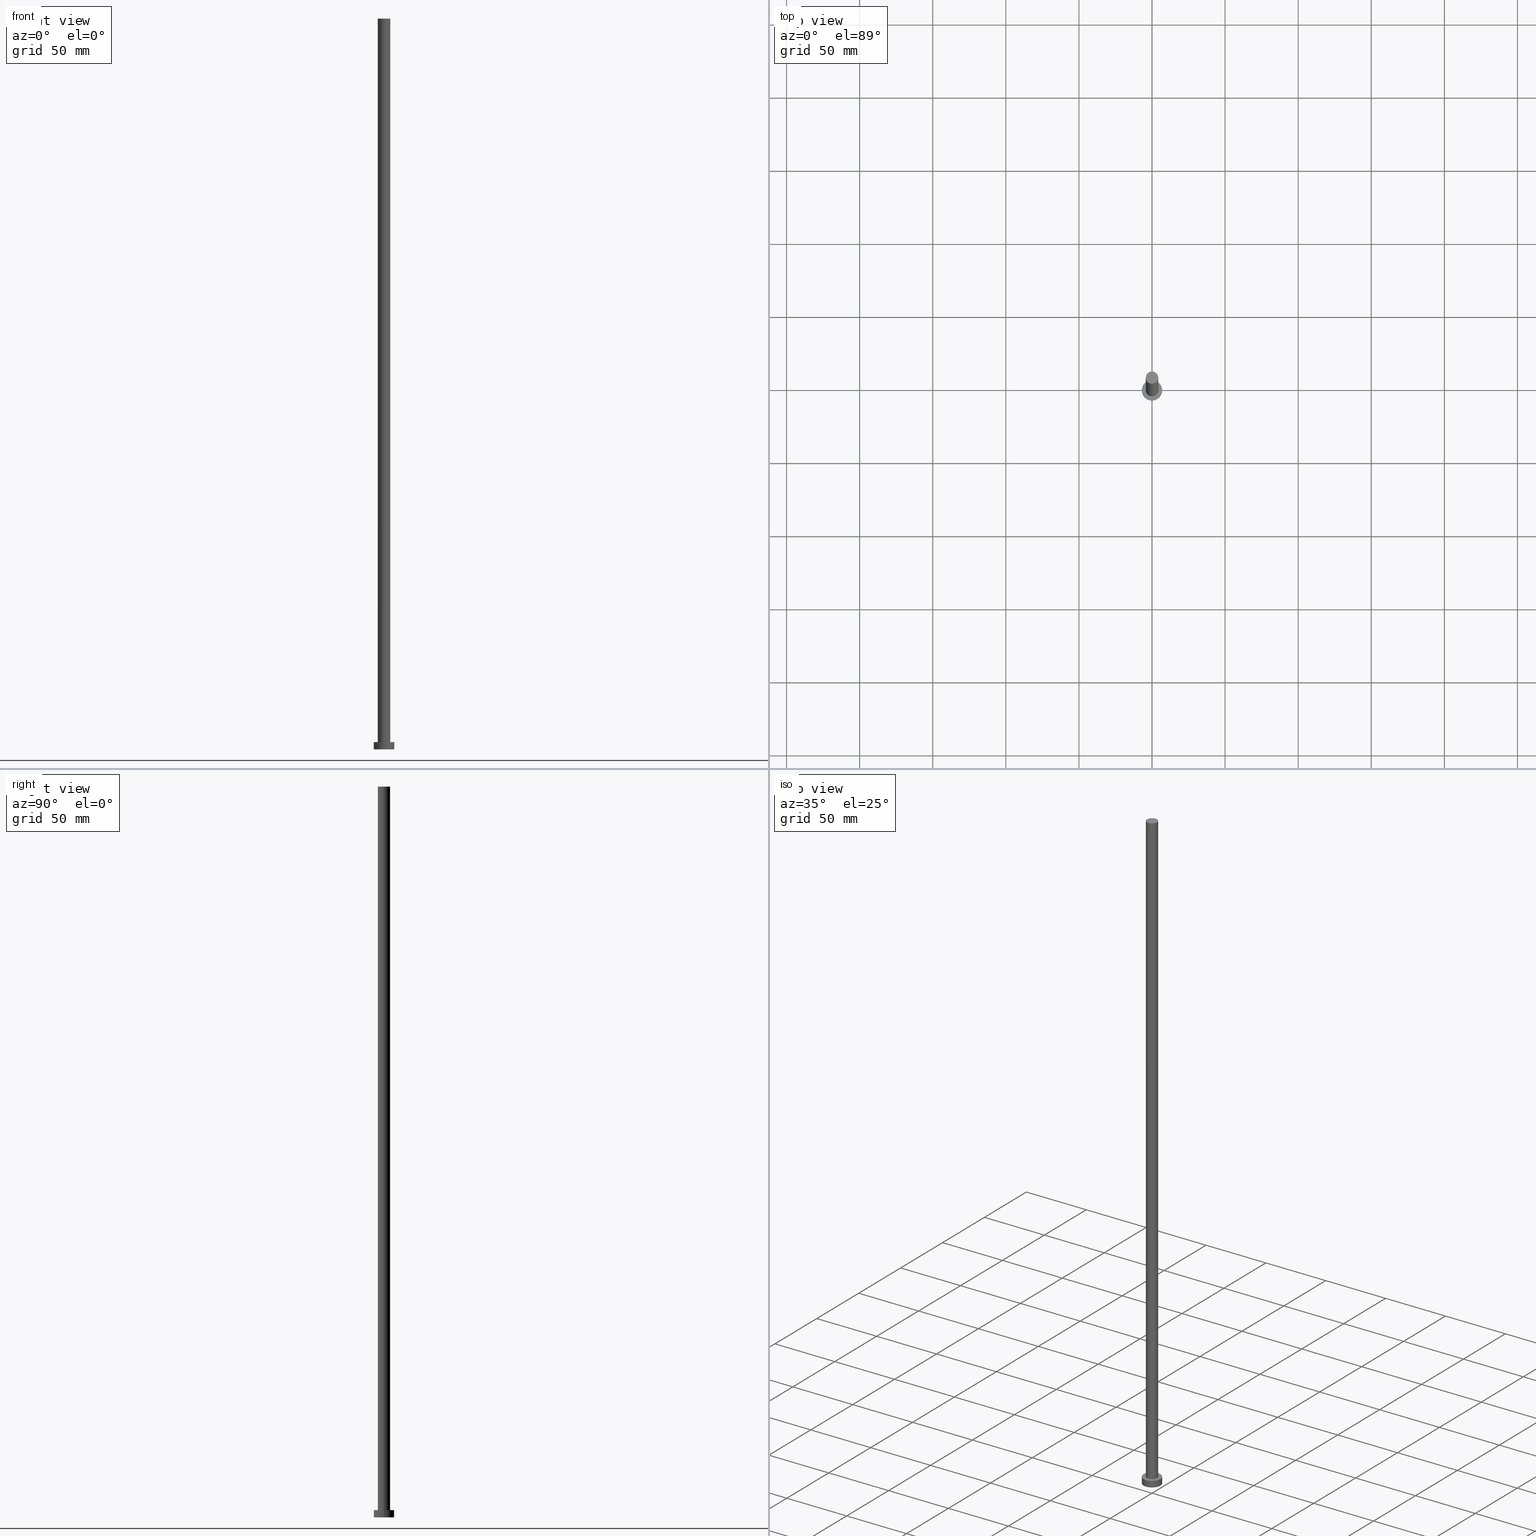
[diagram: canonical four-view strip — front | top / right | iso, engineering-drawing reading convention]
A machine part, canonical four-view strip (front | top / right | iso — engineering-drawing reading convention). The complete STEP part file that produces these views, byte-faithful:
ISO-10303-21;
HEADER;
FILE_DESCRIPTION (( 'STEP AP203' ),
    '1' );
FILE_NAME ('cb31.STEP',
    '2023-02-12T11:37:19',
    ( '' ),
    ( '' ),
    'SwSTEP 2.0',
    'SolidWorks 2019',
    '' );
FILE_SCHEMA (( 'CONFIG_CONTROL_DESIGN' ));
ENDSEC;

DATA;
#1 = APPROVAL_ROLE ( '' ) ;
#2 = CC_DESIGN_APPROVAL ( #199, ( #175 ) ) ;
#3 = COORDINATED_UNIVERSAL_TIME_OFFSET ( 1, 0, .AHEAD. ) ;
#4 = PERSON_AND_ORGANIZATION ( #35, #15 ) ;
#5 = ADVANCED_FACE ( 'NONE', ( #110 ), #253, .T. ) ;
#6 = PRODUCT ( 'cb31', 'cb31', '', ( #100 ) ) ;
#7 = DIRECTION ( 'NONE',  ( 0.000000000000000000, 0.000000000000000000, 1.000000000000000000 ) ) ;
#8 = LINE ( 'NONE', #107, #94 ) ;
#9 = APPROVAL_DATE_TIME ( #69, #188 ) ;
#10 = DIRECTION ( 'NONE',  ( -1.000000000000000000, 0.000000000000000000, 0.000000000000000000 ) ) ;
#11 = VECTOR ( 'NONE', #164, 1000.000000000000000 ) ;
#12 = COORDINATED_UNIVERSAL_TIME_OFFSET ( 1, 0, .AHEAD. ) ;
#13 = CARTESIAN_POINT ( 'NONE',  ( 0.000000000000000000, 0.000000000000000000, 500.0000000000000000 ) ) ;
#14 = ADVANCED_FACE ( 'NONE', ( #86 ), #128, .F. ) ;
#15 = ORGANIZATION ( 'NEUR�EN�', 'NEUR�EN�', '' ) ;
#16 = DIRECTION ( 'NONE',  ( 1.000000000000000000, 0.000000000000000000, -0.000000000000000000 ) ) ;
#17 = DIRECTION ( 'NONE',  ( 1.000000000000000000, 0.000000000000000000, 0.000000000000000000 ) ) ;
#18 = SECURITY_CLASSIFICATION ( '', '', #251 ) ;
#19 = EDGE_LOOP ( 'NONE', ( #21, #135 ) ) ;
#20 = CC_DESIGN_PERSON_AND_ORGANIZATION_ASSIGNMENT ( #185, #92, ( #175 ) ) ;
#21 = ORIENTED_EDGE ( 'NONE', *, *, #221, .T. ) ;
#22 = APPROVAL_STATUS ( 'not_yet_approved' ) ;
#23 = VERTEX_POINT ( 'NONE', #204 ) ;
#24 = DIRECTION ( 'NONE',  ( 1.000000000000000000, 0.000000000000000000, 0.000000000000000000 ) ) ;
#25 = EDGE_CURVE ( 'NONE', #219, #173, #73, .T. ) ;
#26 = ORIENTED_EDGE ( 'NONE', *, *, #98, .T. ) ;
#27 = CALENDAR_DATE ( 2023, 12, 2 ) ;
#28 = DIRECTION ( 'NONE',  ( -0.000000000000000000, -0.000000000000000000, -1.000000000000000000 ) ) ;
#29 =( NAMED_UNIT ( * ) PLANE_ANGLE_UNIT ( ) SI_UNIT ( $, .RADIAN. ) );
#30 = AXIS2_PLACEMENT_3D ( 'NONE', #147, #31, #50 ) ;
#31 = DIRECTION ( 'NONE',  ( 0.000000000000000000, 0.000000000000000000, 1.000000000000000000 ) ) ;
#32 = DIRECTION ( 'NONE',  ( 1.000000000000000000, 0.000000000000000000, -0.000000000000000000 ) ) ;
#33 = CALENDAR_DATE ( 2023, 12, 2 ) ;
#34 = FACE_OUTER_BOUND ( 'NONE', #200, .T. ) ;
#35 = PERSON ( 'NEUR�EN�', 'NEUR�EN�', 'NEUR�EN�', ('NEUR�EN�'), ('NEUR�EN�'), ('NEUR�EN�') ) ;
#36 = LOCAL_TIME ( 12, 37, 19.00000000000000000, #67 ) ;
#37 = PRODUCT_DEFINITION ( 'NEZN�M�', '', #175, #192 ) ;
#38 = SHAPE_DEFINITION_REPRESENTATION ( #182, #168 ) ;
#39 = APPROVAL ( #99, 'NEUR�EN�' ) ;
#40 = AXIS2_PLACEMENT_3D ( 'NONE', #202, #75, #68 ) ;
#41 = EDGE_CURVE ( 'NONE', #219, #222, #250, .T. ) ;
#42 = ORIENTED_EDGE ( 'NONE', *, *, #61, .F. ) ;
#43 = APPLICATION_PROTOCOL_DEFINITION ( 'international standard', 'config_control_design', 1994, #223 ) ;
#44 = DIRECTION ( 'NONE',  ( 1.000000000000000000, 0.000000000000000000, 0.000000000000000000 ) ) ;
#45 = EDGE_LOOP ( 'NONE', ( #141, #153, #26, #244 ) ) ;
#46 = CARTESIAN_POINT ( 'NONE',  ( -4.250000000000000000, 0.000000000000000000, 500.0000000000000000 ) ) ;
#47 = AXIS2_PLACEMENT_3D ( 'NONE', #196, #127, #24 ) ;
#48 = CARTESIAN_POINT ( 'NONE',  ( 0.000000000000000000, 0.000000000000000000, 0.000000000000000000 ) ) ;
#49 = APPROVAL_STATUS ( 'not_yet_approved' ) ;
#50 = DIRECTION ( 'NONE',  ( 1.000000000000000000, 0.000000000000000000, 0.000000000000000000 ) ) ;
#51 = CC_DESIGN_PERSON_AND_ORGANIZATION_ASSIGNMENT ( #72, #203, ( #18 ) ) ;
#52 = CLOSED_SHELL ( 'NONE', ( #211, #5, #93, #170, #14, #81, #125 ) ) ;
#53 = DIRECTION ( 'NONE',  ( 0.000000000000000000, 0.000000000000000000, 1.000000000000000000 ) ) ;
#54 = DIRECTION ( 'NONE',  ( -0.000000000000000000, -0.000000000000000000, -1.000000000000000000 ) ) ;
#55 = EDGE_CURVE ( 'NONE', #222, #23, #190, .T. ) ;
#56 =( GEOMETRIC_REPRESENTATION_CONTEXT ( 3 ) GLOBAL_UNCERTAINTY_ASSIGNED_CONTEXT ( ( #213 ) ) GLOBAL_UNIT_ASSIGNED_CONTEXT ( ( #198, #29, #176 ) ) REPRESENTATION_CONTEXT ( 'NONE', 'WORKASPACE' ) );
#57 = CARTESIAN_POINT ( 'NONE',  ( 7.000000000000000000, 8.572527594031473190E-16, 5.000000000000000000 ) ) ;
#58 = ORIENTED_EDGE ( 'NONE', *, *, #228, .T. ) ;
#59 = PERSON_AND_ORGANIZATION ( #35, #15 ) ;
#60 = ORIENTED_EDGE ( 'NONE', *, *, #228, .F. ) ;
#61 = EDGE_CURVE ( 'NONE', #156, #120, #109, .T. ) ;
#62 = VERTEX_POINT ( 'NONE', #180 ) ;
#63 = PERSON_AND_ORGANIZATION ( #35, #15 ) ;
#64 = ORIENTED_EDGE ( 'NONE', *, *, #55, .T. ) ;
#65 = CARTESIAN_POINT ( 'NONE',  ( -4.250000000000000000, 0.000000000000000000, 500.0000000000000000 ) ) ;
#66 = DATE_TIME_ROLE ( 'creation_date' ) ;
#67 = COORDINATED_UNIVERSAL_TIME_OFFSET ( 1, 0, .AHEAD. ) ;
#68 = DIRECTION ( 'NONE',  ( 1.000000000000000000, 0.000000000000000000, 0.000000000000000000 ) ) ;
#69 = DATE_AND_TIME ( #27, #80 ) ;
#70 = DIRECTION ( 'NONE',  ( -1.000000000000000000, 0.000000000000000000, 0.000000000000000000 ) ) ;
#71 = PLANE ( 'NONE',  #246 ) ;
#72 = PERSON_AND_ORGANIZATION ( #35, #15 ) ;
#73 = CIRCLE ( 'NONE', #209, 7.000000000000000000 ) ;
#74 = EDGE_CURVE ( 'NONE', #173, #23, #8, .T. ) ;
#75 = DIRECTION ( 'NONE',  ( 0.000000000000000000, 0.000000000000000000, 1.000000000000000000 ) ) ;
#76 = APPROVAL_PERSON_ORGANIZATION ( #59, #39, #207 ) ;
#77 = CARTESIAN_POINT ( 'NONE',  ( 0.000000000000000000, 0.000000000000000000, 5.000000000000000000 ) ) ;
#78 = CIRCLE ( 'NONE', #235, 4.250000000000000000 ) ;
#79 = AXIS2_PLACEMENT_3D ( 'NONE', #114, #189, #17 ) ;
#80 = LOCAL_TIME ( 12, 37, 19.00000000000000000, #159 ) ;
#81 = ADVANCED_FACE ( 'NONE', ( #34 ), #149, .T. ) ;
#82 = CARTESIAN_POINT ( 'NONE',  ( 4.250000000000000000, 5.204748896376250699E-16, 500.0000000000000000 ) ) ;
#83 = ORIENTED_EDGE ( 'NONE', *, *, #131, .T. ) ;
#84 = EDGE_CURVE ( 'NONE', #62, #120, #78, .T. ) ;
#85 = EDGE_LOOP ( 'NONE', ( #212, #240, #137, #60 ) ) ;
#86 = FACE_OUTER_BOUND ( 'NONE', #139, .T. ) ;
#87 = AXIS2_PLACEMENT_3D ( 'NONE', #103, #162, #10 ) ;
#88 = LOCAL_TIME ( 12, 37, 19.00000000000000000, #3 ) ;
#89 = CYLINDRICAL_SURFACE ( 'NONE', #205, 7.000000000000000000 ) ;
#90 = DATE_AND_TIME ( #146, #88 ) ;
#91 = CARTESIAN_POINT ( 'NONE',  ( 4.250000000000000000, 5.204748896376250699E-16, 5.000000000000000000 ) ) ;
#92 = PERSON_AND_ORGANIZATION_ROLE ( 'design_supplier' ) ;
#93 = ADVANCED_FACE ( 'NONE', ( #227 ), #89, .T. ) ;
#94 = VECTOR ( 'NONE', #54, 1000.000000000000000 ) ;
#95 = CARTESIAN_POINT ( 'NONE',  ( 0.000000000000000000, 0.000000000000000000, 5.000000000000000000 ) ) ;
#96 = DATE_AND_TIME ( #33, #181 ) ;
#97 = AXIS2_PLACEMENT_3D ( 'NONE', #48, #7, #32 ) ;
#98 = EDGE_CURVE ( 'NONE', #23, #222, #152, .T. ) ;
#99 = APPROVAL_STATUS ( 'not_yet_approved' ) ;
#100 = MECHANICAL_CONTEXT ( 'NONE', #186, 'mechanical' ) ;
#101 = ORIENTED_EDGE ( 'NONE', *, *, #98, .F. ) ;
#102 = DIRECTION ( 'NONE',  ( 0.000000000000000000, 0.000000000000000000, 1.000000000000000000 ) ) ;
#103 = CARTESIAN_POINT ( 'NONE',  ( 0.000000000000000000, 0.000000000000000000, 500.0000000000000000 ) ) ;
#104 = CC_DESIGN_PERSON_AND_ORGANIZATION_ASSIGNMENT ( #4, #118, ( #37 ) ) ;
#105 = DIRECTION ( 'NONE',  ( 1.000000000000000000, 0.000000000000000000, 0.000000000000000000 ) ) ;
#106 = CC_DESIGN_APPROVAL ( #39, ( #18 ) ) ;
#107 = CARTESIAN_POINT ( 'NONE',  ( 7.000000000000000000, 8.572527594031473190E-16, 5.000000000000000000 ) ) ;
#108 = PERSON_AND_ORGANIZATION_ROLE ( 'creator' ) ;
#109 = LINE ( 'NONE', #145, #171 ) ;
#110 = FACE_OUTER_BOUND ( 'NONE', #45, .T. ) ;
#111 = CARTESIAN_POINT ( 'NONE',  ( -7.000000000000000000, 0.000000000000000000, 5.000000000000000000 ) ) ;
#112 = CIRCLE ( 'NONE', #47, 4.250000000000000000 ) ;
#113 = CC_DESIGN_PERSON_AND_ORGANIZATION_ASSIGNMENT ( #130, #108, ( #175 ) ) ;
#114 = CARTESIAN_POINT ( 'NONE',  ( 0.000000000000000000, 0.000000000000000000, 5.000000000000000000 ) ) ;
#115 = DATE_AND_TIME ( #169, #218 ) ;
#116 = AXIS2_PLACEMENT_3D ( 'NONE', #140, #102, #193 ) ;
#117 = EDGE_LOOP ( 'NONE', ( #143, #217 ) ) ;
#118 = PERSON_AND_ORGANIZATION_ROLE ( 'creator' ) ;
#119 = PRODUCT_RELATED_PRODUCT_CATEGORY ( 'detail', '', ( #6 ) ) ;
#120 = VERTEX_POINT ( 'NONE', #91 ) ;
#121 = PERSON_AND_ORGANIZATION ( #35, #15 ) ;
#122 = ORIENTED_EDGE ( 'NONE', *, *, #84, .T. ) ;
#123 = CIRCLE ( 'NONE', #124, 4.250000000000000000 ) ;
#124 = AXIS2_PLACEMENT_3D ( 'NONE', #13, #142, #44 ) ;
#125 = ADVANCED_FACE ( 'NONE', ( #165 ), #71, .T. ) ;
#126 = CARTESIAN_POINT ( 'NONE',  ( -7.000000000000000000, 0.000000000000000000, 5.000000000000000000 ) ) ;
#127 = DIRECTION ( 'NONE',  ( 0.000000000000000000, 0.000000000000000000, 1.000000000000000000 ) ) ;
#128 = PLANE ( 'NONE',  #97 ) ;
#129 = DIRECTION ( 'NONE',  ( 1.000000000000000000, 0.000000000000000000, -0.000000000000000000 ) ) ;
#130 = PERSON_AND_ORGANIZATION ( #35, #15 ) ;
#131 = EDGE_CURVE ( 'NONE', #173, #219, #216, .T. ) ;
#132 = DIRECTION ( 'NONE',  ( -0.000000000000000000, -0.000000000000000000, -1.000000000000000000 ) ) ;
#133 = APPROVAL_PERSON_ORGANIZATION ( #161, #199, #1 ) ;
#134 = DIRECTION ( 'NONE',  ( 1.000000000000000000, 0.000000000000000000, 0.000000000000000000 ) ) ;
#135 = ORIENTED_EDGE ( 'NONE', *, *, #187, .T. ) ;
#136 = DIRECTION ( 'NONE',  ( -1.000000000000000000, 0.000000000000000000, 0.000000000000000000 ) ) ;
#137 = ORIENTED_EDGE ( 'NONE', *, *, #238, .T. ) ;
#138 = CYLINDRICAL_SURFACE ( 'NONE', #243, 4.250000000000000000 ) ;
#139 = EDGE_LOOP ( 'NONE', ( #195, #101 ) ) ;
#140 = CARTESIAN_POINT ( 'NONE',  ( 0.000000000000000000, 0.000000000000000000, 0.000000000000000000 ) ) ;
#141 = ORIENTED_EDGE ( 'NONE', *, *, #131, .F. ) ;
#142 = DIRECTION ( 'NONE',  ( 0.000000000000000000, 0.000000000000000000, 1.000000000000000000 ) ) ;
#143 = ORIENTED_EDGE ( 'NONE', *, *, #84, .F. ) ;
#144 = ORIENTED_EDGE ( 'NONE', *, *, #221, .F. ) ;
#145 = CARTESIAN_POINT ( 'NONE',  ( 4.250000000000000000, 5.204748896376250699E-16, 500.0000000000000000 ) ) ;
#146 = CALENDAR_DATE ( 2023, 12, 2 ) ;
#147 = CARTESIAN_POINT ( 'NONE',  ( 0.000000000000000000, 0.000000000000000000, 0.000000000000000000 ) ) ;
#148 = DIRECTION ( 'NONE',  ( -0.000000000000000000, -0.000000000000000000, -1.000000000000000000 ) ) ;
#149 = CYLINDRICAL_SURFACE ( 'NONE', #87, 4.250000000000000000 ) ;
#150 = VECTOR ( 'NONE', #28, 1000.000000000000000 ) ;
#151 = APPROVAL_DATE_TIME ( #115, #39 ) ;
#152 = CIRCLE ( 'NONE', #30, 7.000000000000000000 ) ;
#153 = ORIENTED_EDGE ( 'NONE', *, *, #74, .T. ) ;
#154 = FACE_BOUND ( 'NONE', #117, .T. ) ;
#155 = CARTESIAN_POINT ( 'NONE',  ( 0.000000000000000000, 0.000000000000000000, 500.0000000000000000 ) ) ;
#156 = VERTEX_POINT ( 'NONE', #82 ) ;
#157 = CC_DESIGN_SECURITY_CLASSIFICATION ( #18, ( #175 ) ) ;
#158 = LINE ( 'NONE', #46, #11 ) ;
#159 = COORDINATED_UNIVERSAL_TIME_OFFSET ( 1, 0, .AHEAD. ) ;
#160 = ORIENTED_EDGE ( 'NONE', *, *, #74, .F. ) ;
#161 = PERSON_AND_ORGANIZATION ( #35, #15 ) ;
#162 = DIRECTION ( 'NONE',  ( -0.000000000000000000, -0.000000000000000000, -1.000000000000000000 ) ) ;
#163 = CARTESIAN_POINT ( 'NONE',  ( 0.000000000000000000, 0.000000000000000000, 5.000000000000000000 ) ) ;
#164 = DIRECTION ( 'NONE',  ( -0.000000000000000000, -0.000000000000000000, -1.000000000000000000 ) ) ;
#165 = FACE_OUTER_BOUND ( 'NONE', #19, .T. ) ;
#166 = CC_DESIGN_DATE_AND_TIME_ASSIGNMENT ( #96, #233, ( #18 ) ) ;
#167 = DIRECTION ( 'NONE',  ( 0.000000000000000000, 0.000000000000000000, 1.000000000000000000 ) ) ;
#168 = ADVANCED_BREP_SHAPE_REPRESENTATION ( 'cb31', ( #234, #116 ), #56 ) ;
#169 = CALENDAR_DATE ( 2023, 12, 2 ) ;
#170 = ADVANCED_FACE ( 'NONE', ( #154, #172 ), #239, .T. ) ;
#171 = VECTOR ( 'NONE', #148, 1000.000000000000000 ) ;
#172 = FACE_OUTER_BOUND ( 'NONE', #174, .T. ) ;
#173 = VERTEX_POINT ( 'NONE', #57 ) ;
#174 = EDGE_LOOP ( 'NONE', ( #245, #83 ) ) ;
#175 = PRODUCT_DEFINITION_FORMATION_WITH_SPECIFIED_SOURCE ( 'LIBOVOLN�', '', #6, .NOT_KNOWN. ) ;
#176 =( NAMED_UNIT ( * ) SI_UNIT ( $, .STERADIAN. ) SOLID_ANGLE_UNIT ( ) );
#177 = APPLICATION_PROTOCOL_DEFINITION ( 'international standard', 'config_control_design', 1994, #186 ) ;
#178 = DIRECTION ( 'NONE',  ( 0.000000000000000000, 0.000000000000000000, 1.000000000000000000 ) ) ;
#179 = CARTESIAN_POINT ( 'NONE',  ( -7.000000000000000000, 0.000000000000000000, 0.000000000000000000 ) ) ;
#180 = CARTESIAN_POINT ( 'NONE',  ( -4.250000000000000000, 0.000000000000000000, 5.000000000000000000 ) ) ;
#181 = LOCAL_TIME ( 12, 37, 19.00000000000000000, #12 ) ;
#182 = PRODUCT_DEFINITION_SHAPE ( 'NONE', 'NONE',  #37 ) ;
#183 = DIRECTION ( 'NONE',  ( 1.000000000000000000, 0.000000000000000000, 0.000000000000000000 ) ) ;
#184 = AXIS2_PLACEMENT_3D ( 'NONE', #95, #197, #229 ) ;
#185 = PERSON_AND_ORGANIZATION ( #35, #15 ) ;
#186 = APPLICATION_CONTEXT ( 'configuration controlled 3d designs of mechanical parts and assemblies' ) ;
#187 = EDGE_CURVE ( 'NONE', #156, #255, #201, .T. ) ;
#188 = APPROVAL ( #49, 'NEUR�EN�' ) ;
#189 = DIRECTION ( 'NONE',  ( 0.000000000000000000, 0.000000000000000000, 1.000000000000000000 ) ) ;
#190 = CIRCLE ( 'NONE', #40, 7.000000000000000000 ) ;
#191 = FACE_OUTER_BOUND ( 'NONE', #85, .T. ) ;
#192 = DESIGN_CONTEXT ( 'detailed design', #223, 'design' ) ;
#193 = DIRECTION ( 'NONE',  ( 1.000000000000000000, 0.000000000000000000, 0.000000000000000000 ) ) ;
#194 = ORIENTED_EDGE ( 'NONE', *, *, #41, .T. ) ;
#195 = ORIENTED_EDGE ( 'NONE', *, *, #55, .F. ) ;
#196 = CARTESIAN_POINT ( 'NONE',  ( 0.000000000000000000, 0.000000000000000000, 5.000000000000000000 ) ) ;
#197 = DIRECTION ( 'NONE',  ( -0.000000000000000000, -0.000000000000000000, -1.000000000000000000 ) ) ;
#198 =( LENGTH_UNIT ( ) NAMED_UNIT ( * ) SI_UNIT ( .MILLI., .METRE. ) );
#199 = APPROVAL ( #22, 'NEUR�EN�' ) ;
#200 = EDGE_LOOP ( 'NONE', ( #42, #144, #58, #122 ) ) ;
#201 = CIRCLE ( 'NONE', #225, 4.250000000000000000 ) ;
#202 = CARTESIAN_POINT ( 'NONE',  ( 0.000000000000000000, 0.000000000000000000, 0.000000000000000000 ) ) ;
#203 = PERSON_AND_ORGANIZATION_ROLE ( 'classification_officer' ) ;
#204 = CARTESIAN_POINT ( 'NONE',  ( 7.000000000000000000, 8.572527594031473190E-16, 0.000000000000000000 ) ) ;
#205 = AXIS2_PLACEMENT_3D ( 'NONE', #163, #249, #70 ) ;
#206 = DATE_AND_TIME ( #232, #36 ) ;
#207 = APPROVAL_ROLE ( '' ) ;
#208 = CC_DESIGN_DATE_AND_TIME_ASSIGNMENT ( #90, #66, ( #37 ) ) ;
#209 = AXIS2_PLACEMENT_3D ( 'NONE', #252, #167, #105 ) ;
#210 = EDGE_LOOP ( 'NONE', ( #160, #224, #194, #64 ) ) ;
#211 = ADVANCED_FACE ( 'NONE', ( #191 ), #138, .T. ) ;
#212 = ORIENTED_EDGE ( 'NONE', *, *, #187, .F. ) ;
#213 = UNCERTAINTY_MEASURE_WITH_UNIT (LENGTH_MEASURE( 1.000000000000000082E-05 ), #198, 'distance_accuracy_value', 'NONE');
#214 = COORDINATED_UNIVERSAL_TIME_OFFSET ( 1, 0, .AHEAD. ) ;
#215 = CARTESIAN_POINT ( 'NONE',  ( 0.000000000000000000, 0.000000000000000000, 500.0000000000000000 ) ) ;
#216 = CIRCLE ( 'NONE', #79, 7.000000000000000000 ) ;
#217 = ORIENTED_EDGE ( 'NONE', *, *, #238, .F. ) ;
#218 = LOCAL_TIME ( 12, 37, 19.00000000000000000, #214 ) ;
#219 = VERTEX_POINT ( 'NONE', #111 ) ;
#220 = PERSON_AND_ORGANIZATION_ROLE ( 'design_owner' ) ;
#221 = EDGE_CURVE ( 'NONE', #255, #156, #123, .T. ) ;
#222 = VERTEX_POINT ( 'NONE', #179 ) ;
#223 = APPLICATION_CONTEXT ( 'configuration controlled 3d designs of mechanical parts and assemblies' ) ;
#224 = ORIENTED_EDGE ( 'NONE', *, *, #25, .F. ) ;
#225 = AXIS2_PLACEMENT_3D ( 'NONE', #155, #241, #134 ) ;
#226 = APPROVAL_ROLE ( '' ) ;
#227 = FACE_OUTER_BOUND ( 'NONE', #210, .T. ) ;
#228 = EDGE_CURVE ( 'NONE', #255, #62, #158, .T. ) ;
#229 = DIRECTION ( 'NONE',  ( -1.000000000000000000, 0.000000000000000000, 0.000000000000000000 ) ) ;
#230 = APPROVAL_DATE_TIME ( #206, #199 ) ;
#231 = CARTESIAN_POINT ( 'NONE',  ( 0.000000000000000000, 0.000000000000000000, 500.0000000000000000 ) ) ;
#232 = CALENDAR_DATE ( 2023, 12, 2 ) ;
#233 = DATE_TIME_ROLE ( 'classification_date' ) ;
#234 = MANIFOLD_SOLID_BREP ( 'P�idat vysunut�m3', #52 ) ;
#235 = AXIS2_PLACEMENT_3D ( 'NONE', #247, #178, #183 ) ;
#236 = DIRECTION ( 'NONE',  ( 0.000000000000000000, 0.000000000000000000, 1.000000000000000000 ) ) ;
#237 = AXIS2_PLACEMENT_3D ( 'NONE', #77, #236, #16 ) ;
#238 = EDGE_CURVE ( 'NONE', #120, #62, #112, .T. ) ;
#239 = PLANE ( 'NONE',  #237 ) ;
#240 = ORIENTED_EDGE ( 'NONE', *, *, #61, .T. ) ;
#241 = DIRECTION ( 'NONE',  ( 0.000000000000000000, 0.000000000000000000, 1.000000000000000000 ) ) ;
#242 = CC_DESIGN_APPROVAL ( #188, ( #37 ) ) ;
#243 = AXIS2_PLACEMENT_3D ( 'NONE', #215, #132, #136 ) ;
#244 = ORIENTED_EDGE ( 'NONE', *, *, #41, .F. ) ;
#245 = ORIENTED_EDGE ( 'NONE', *, *, #25, .T. ) ;
#246 = AXIS2_PLACEMENT_3D ( 'NONE', #231, #53, #129 ) ;
#247 = CARTESIAN_POINT ( 'NONE',  ( 0.000000000000000000, 0.000000000000000000, 5.000000000000000000 ) ) ;
#248 = APPROVAL_PERSON_ORGANIZATION ( #121, #188, #226 ) ;
#249 = DIRECTION ( 'NONE',  ( -0.000000000000000000, -0.000000000000000000, -1.000000000000000000 ) ) ;
#250 = LINE ( 'NONE', #126, #150 ) ;
#251 = SECURITY_CLASSIFICATION_LEVEL ( 'unclassified' ) ;
#252 = CARTESIAN_POINT ( 'NONE',  ( 0.000000000000000000, 0.000000000000000000, 5.000000000000000000 ) ) ;
#253 = CYLINDRICAL_SURFACE ( 'NONE', #184, 7.000000000000000000 ) ;
#254 = CC_DESIGN_PERSON_AND_ORGANIZATION_ASSIGNMENT ( #63, #220, ( #6 ) ) ;
#255 = VERTEX_POINT ( 'NONE', #65 ) ;
ENDSEC;
END-ISO-10303-21;
